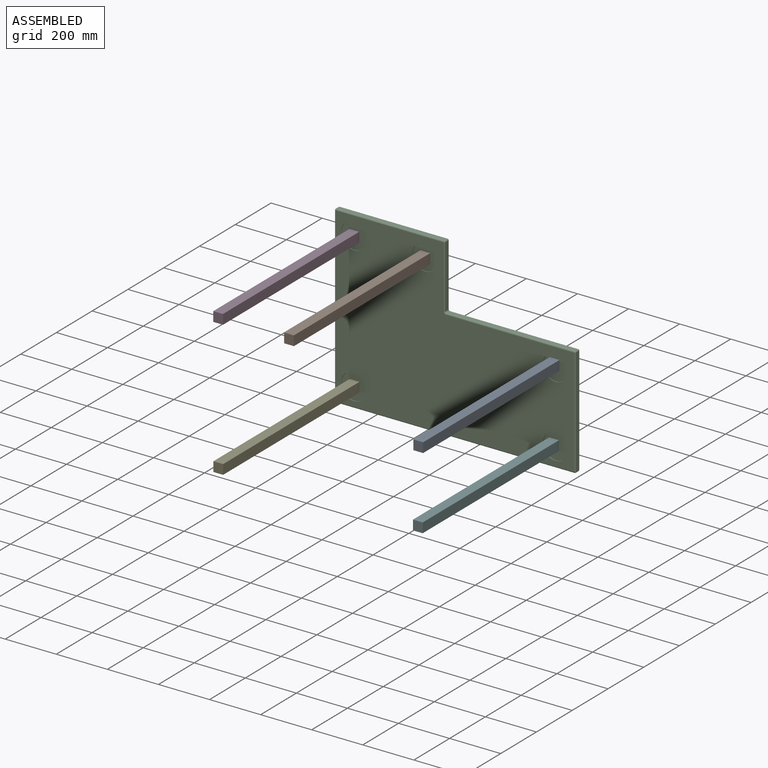
[diagram: assembled view]
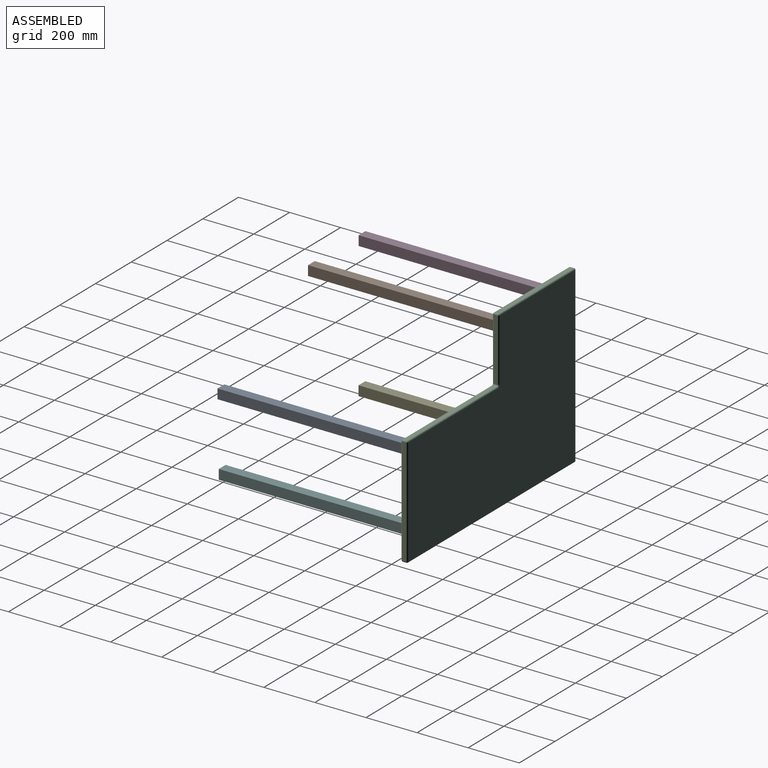
[diagram: assembled view, second angle]
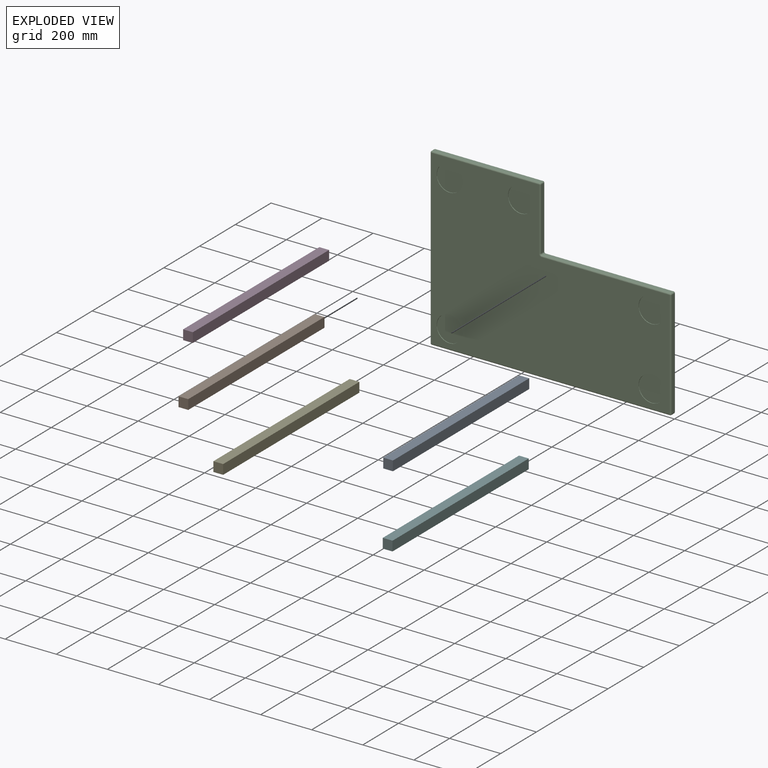
[diagram: exploded view]
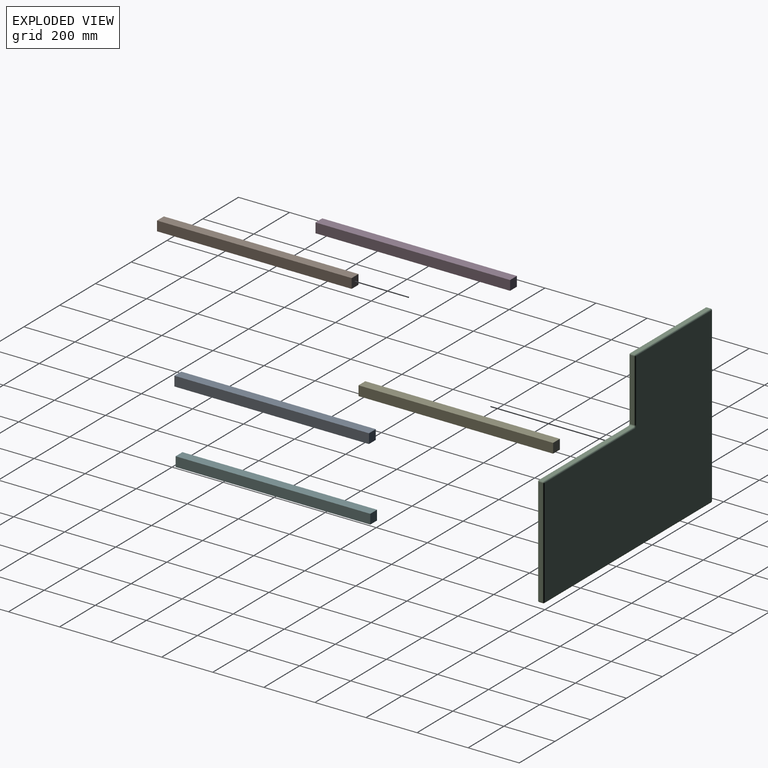
[diagram: exploded view, second angle]
ASSEMBLY  parts=6 mates=5
PART A: 6 faces, bbox 38.1x762x38.1 mm
  f0: plane 762x38.1mm, normal (1,0,0), area 29032.2mm2, adj f1,f3,f4,f5
  f1: plane 762x38.1mm, normal (0,0,1), area 29032.2mm2, adj f0,f2,f4,f5
  f2: plane 762x38.1mm, normal (-1,0,0), area 29032.2mm2, adj f1,f3,f4,f5
  f3: plane 762x38.1mm, normal (0,0,-1), area 29032.2mm2, adj f0,f2,f4,f5
  f4: plane 38.1x38.1mm, normal (0,-1,0), area 1451.6mm2, adj f0,f1,f2,f3
  f5: plane 38.1x38.1mm, normal (0,1,0), area 1451.6mm2, adj f0,f1,f2,f3
PART B: same geometry as A
PART C: 48 faces, bbox 943x25.4x685.8 mm
  f0: plane 501.02x15.24mm, normal (0,0,1), area 7635.5mm2, adj f36,f41,f44,f47
  f1: plane 243.84x15.24mm, normal (1,0,0), area 3716.1mm2, adj f33,f42,f43,f47
  f2: plane 421.64x15.24mm, normal (0,0,1), area 6425.8mm2, adj f23,f32,f33,f34
  f3: plane 675.64x15.24mm, normal (-1,0,0), area 10296.8mm2, adj f18,f22,f23,f24
  f4: plane 932.82x15.24mm, normal (0,0,-1), area 14216.1mm2, adj f18,f21,f25,f26
  f5: plane 421.64x15.24mm, normal (1,0,0), area 6425.8mm2, adj f26,f31,f35,f36
  f6: plane 932.82x675.64mm, normal (0,-1,0), area 459894.2mm2, adj f8,f10,f12,f14,f16,f21,f22,f31
  f7: plane 932.82x675.64mm, normal (0,1,0), area 500430.8mm2, adj f24,f25,f34,f35,f43,f44,f46
  f8: cylinder r=50.8mm len=101.6mm, axis (0,-1,0), area 810.7mm2, adj f6,f9
  f9: plane 101.6x101.6mm, normal (0,-1,0), area 8107.3mm2, adj f8
  f10: cylinder r=50.8mm len=101.6mm, axis (0,-1,0), area 810.7mm2, adj f6,f11
  f11: plane 101.6x101.6mm, normal (0,-1,0), area 8107.3mm2, adj f10
  f12: cylinder r=50.8mm len=101.6mm, axis (0,-1,0), area 810.7mm2, adj f6,f13
  f13: plane 101.6x101.6mm, normal (0,-1,0), area 8107.3mm2, adj f12
  f14: cylinder r=50.8mm len=101.6mm, axis (0,-1,0), area 810.7mm2, adj f6,f15
  f15: plane 101.6x101.6mm, normal (0,-1,0), area 8107.3mm2, adj f14
  f16: cylinder r=50.8mm len=101.6mm, axis (0,-1,0), area 810.7mm2, adj f6,f17
  f17: plane 101.6x101.6mm, normal (0,-1,0), area 8107.3mm2, adj f16
  f18: cylinder r=5.08mm len=15.24mm, axis (0,-1,0), area 121.6mm2, adj f3,f4,f19,f20
  f19: sphere r=5.08mm, area 40.5mm2, adj f18,f21,f22
  f20: sphere r=5.08mm, area 40.5mm2, adj f18,f24,f25
  f21: cylinder r=5.08mm len=932.82mm, axis (-1,0,0), area 7443.5mm2, adj f4,f6,f19,f27
  f22: cylinder r=5.08mm len=675.64mm, axis (0,0,1), area 5391.4mm2, adj f3,f6,f19,f28
  f23: cylinder r=5.08mm len=15.24mm, axis (0,-1,0), area 121.6mm2, adj f2,f3,f28,f29
  f24: cylinder r=5.08mm len=675.64mm, axis (0,0,-1), area 5391.4mm2, adj f3,f7,f20,f29
  f25: cylinder r=5.08mm len=932.82mm, axis (1,0,0), area 7443.5mm2, adj f4,f7,f20,f30
  f26: cylinder r=5.08mm len=15.24mm, axis (0,1,0), area 121.6mm2, adj f4,f5,f27,f30
  f27: sphere r=5.08mm, area 40.5mm2, adj f21,f26,f31
  f28: sphere r=5.08mm, area 40.5mm2, adj f22,f23,f32
  f29: sphere r=5.08mm, area 40.5mm2, adj f23,f24,f34
  f30: sphere r=5.08mm, area 40.5mm2, adj f25,f26,f35
  f31: cylinder r=5.08mm len=421.64mm, axis (0,0,-1), area 3364.5mm2, adj f5,f6,f27,f37
  f32: cylinder r=5.08mm len=421.64mm, axis (1,0,0), area 3364.5mm2, adj f2,f6,f28,f38
  f33: cylinder r=5.08mm len=15.24mm, axis (0,1,0), area 121.6mm2, adj f1,f2,f38,f39
  f34: cylinder r=5.08mm len=421.64mm, axis (-1,0,0), area 3364.5mm2, adj f2,f7,f29,f39
  f35: cylinder r=5.08mm len=421.64mm, axis (0,0,1), area 3364.5mm2, adj f5,f7,f30,f40
  f36: cylinder r=5.08mm len=15.24mm, axis (0,1,0), area 121.6mm2, adj f0,f5,f37,f40
  f37: sphere r=5.08mm, area 40.5mm2, adj f31,f36,f41
  f38: sphere r=5.08mm, area 40.5mm2, adj f32,f33,f42
  f39: sphere r=5.08mm, area 40.5mm2, adj f33,f34,f43
  f40: sphere r=5.08mm, area 40.5mm2, adj f35,f36,f44
  f41: cylinder r=5.08mm len=501.02mm, axis (1,0,0), area 3997.9mm2, adj f0,f6,f37,f45
  f42: cylinder r=5.08mm len=243.84mm, axis (0,0,-1), area 1945.8mm2, adj f1,f6,f38,f45
  f43: cylinder r=5.08mm len=243.84mm, axis (0,0,1), area 1945.8mm2, adj f1,f7,f39,f46
  f44: cylinder r=5.08mm len=501.02mm, axis (-1,0,0), area 3997.9mm2, adj f0,f7,f40,f46
  f45: torus R=10.16mm, axis (0,-1,0), area 86.8mm2, adj f6,f41,f42,f47
  f46: torus R=10.16mm, axis (0,-1,0), area 86.8mm2, adj f7,f43,f44,f47
  f47: cylinder r=5.08mm len=15.24mm, axis (0,-1,0), area 121.6mm2, adj f0,f1,f45,f46
PART D: same geometry as A
PART E: same geometry as A
PART F: same geometry as A
PLACE A t=(122.73,-141.38,122.58)mm
PLACE B t=(-383.24,-141.38,365.6)mm
PLACE C t=(-267.36,265.02,98.9)mm fixed
PLACE D t=(-662.64,-138.84,365.6)mm fixed
PLACE E t=(-662.09,-138.84,-165.42)mm
PLACE F t=(119.27,-138.84,-163.12)mm
MATE planar C.f8 <-> E.f5  axis (0,-1,0) through (-662.64,242.16,-167.8)mm
MATE planar B.f5 <-> C.f12  axis (0,1,0) through (-383.24,239.62,365.6)mm
MATE planar A.f5 <-> C.f10  axis (0,1,0) through (122.73,239.62,122.58)mm
MATE planar C.f10 <-> D.f5  axis (0,-1,0) through (-662.64,242.16,365.6)mm
MATE planar C.f12 <-> F.f5  axis (0,-1,0) through (-383.24,242.16,365.6)mm
